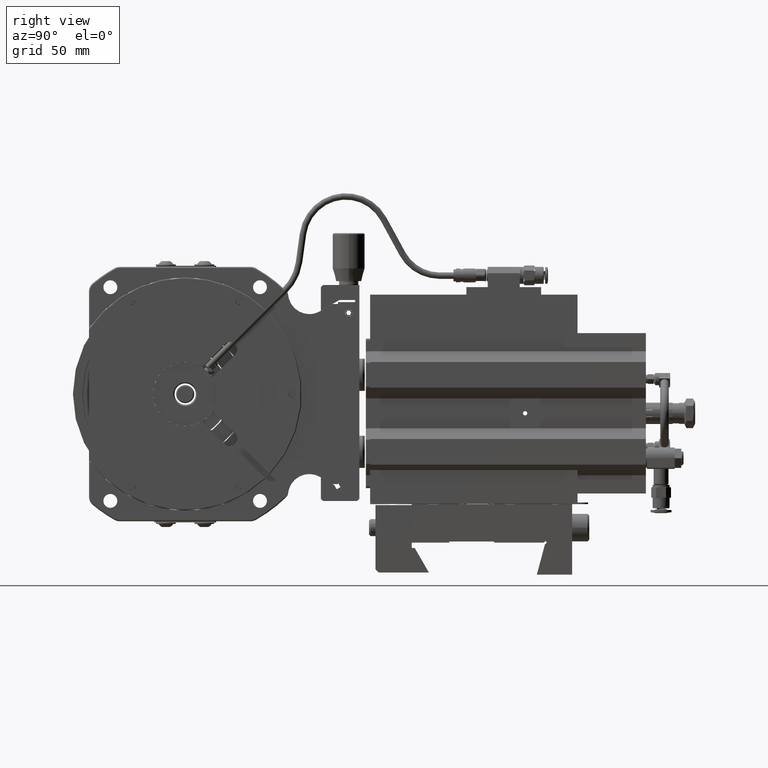
[diagram: clean part render]
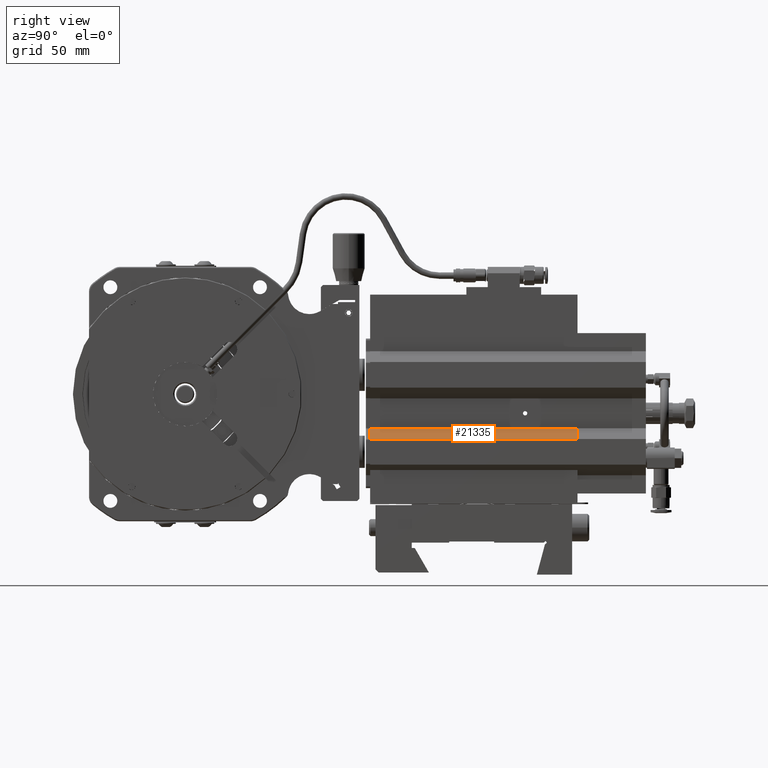
[diagram: same view with one face highlighted and labeled with its STEP entity id]
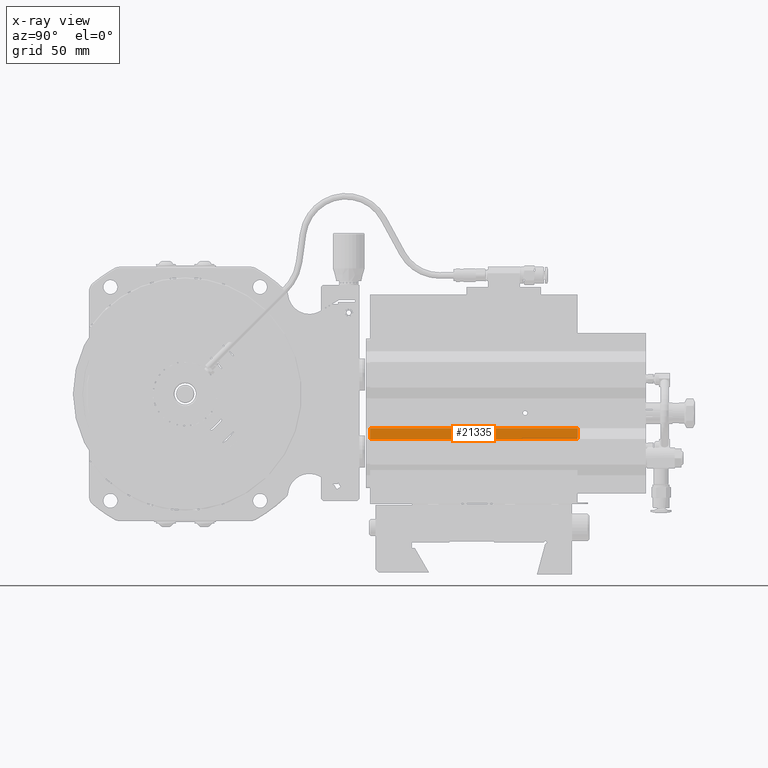
[diagram: x-ray of the same camera — body ghosted, the highlighted face saturated]
A machine part, right view. The second image highlights one B-rep face of the part: STEP entity #21335.
The next image is the same camera in x-ray: the body ghosted, the highlighted face saturated — about 0% of this face is hidden behind the body in this view.
In plain terms, the highlighted planar face has unit normal (0.7071, -0, 0.7071).
Its self-contained STEP definition (entity closure, byte-faithful):
#444 = DIRECTION ( 'NONE',  ( 0.7071067811865479058, 5.174600492913465983E-19, -0.7071067811865472397 ) ) ;
#485 = CARTESIAN_POINT ( 'NONE',  ( 0.4330708661417326244, 3.308669289292881288, -0.8248286879110496850 ) ) ;
#628 = LINE ( 'NONE', #18018, #1060 ) ;
#1060 = VECTOR ( 'NONE', #35464, 39.37007874015748143 ) ;
#1777 = ORIENTED_EDGE ( 'NONE', *, *, #48057, .F. ) ;
#2961 = ORIENTED_EDGE ( 'NONE', *, *, #50504, .T. ) ;
#4465 = VERTEX_POINT ( 'NONE', #485 ) ;
#11303 = DIRECTION ( 'NONE',  ( 0.7071067811865479058, 5.174600492913465983E-19, -0.7071067811865472397 ) ) ;
#14956 = AXIS2_PLACEMENT_3D ( 'NONE', #17938, #52181, #29709 ) ;
#17938 = CARTESIAN_POINT ( 'NONE',  ( 0.4330708661417326244, 3.308669289292881288, -0.8248286879110496850 ) ) ;
#17953 = VECTOR ( 'NONE', #11303, 39.37007874015748143 ) ;
#18018 = CARTESIAN_POINT ( 'NONE',  ( 0.2362204724409449896, 3.308669289292881288, -0.6279782942102621890 ) ) ;
#19203 = DIRECTION ( 'NONE',  ( -2.738967610578714190E-17, 1.000000000000000000, -2.775557561562891351E-17 ) ) ;
#19707 = EDGE_CURVE ( 'NONE', #46901, #24677, #628, .T. ) ;
#19922 = ORIENTED_EDGE ( 'NONE', *, *, #31297, .T. ) ;
#21335 = ADVANCED_FACE ( 'NONE', ( #25100 ), #46159, .T. ) ;
#24677 = VERTEX_POINT ( 'NONE', #32967 ) ;
#25100 = FACE_OUTER_BOUND ( 'NONE', #51271, .T. ) ;
#27529 = CARTESIAN_POINT ( 'NONE',  ( 0.4330708661417326244, 3.308669289292881288, -0.8248286879110496850 ) ) ;
#29709 = DIRECTION ( 'NONE',  ( 0.7071067811865479058, 5.174600492913465983E-19, -0.7071067811865472397 ) ) ;
#31297 = EDGE_CURVE ( 'NONE', #46901, #4465, #40084, .T. ) ;
#31546 = VERTEX_POINT ( 'NONE', #55994 ) ;
#32113 = CARTESIAN_POINT ( 'NONE',  ( 0.2362204724409454060, 3.308669289292881288, -0.6279782942102621890 ) ) ;
#32967 = CARTESIAN_POINT ( 'NONE',  ( 0.2362204724409449064, 7.127566927088157200, -0.6279782942102623000 ) ) ;
#33753 = VECTOR ( 'NONE', #19203, 39.37007874015748143 ) ;
#34423 = ORIENTED_EDGE ( 'NONE', *, *, #19707, .F. ) ;
#35464 = DIRECTION ( 'NONE',  ( -2.738967610578714190E-17, 1.000000000000000000, -2.775557561562891351E-17 ) ) ;
#37236 = LINE ( 'NONE', #54607, #17953 ) ;
#37480 = CARTESIAN_POINT ( 'NONE',  ( 0.4330708661417326244, 3.308669289292881288, -0.8248286879110496850 ) ) ;
#40084 = LINE ( 'NONE', #27529, #50305 ) ;
#45398 = LINE ( 'NONE', #37480, #33753 ) ;
#46159 = PLANE ( 'NONE',  #14956 ) ;
#46901 = VERTEX_POINT ( 'NONE', #32113 ) ;
#48057 = EDGE_CURVE ( 'NONE', #24677, #31546, #37236, .T. ) ;
#50305 = VECTOR ( 'NONE', #444, 39.37007874015748143 ) ;
#50504 = EDGE_CURVE ( 'NONE', #4465, #31546, #45398, .T. ) ;
#51271 = EDGE_LOOP ( 'NONE', ( #1777, #34423, #19922, #2961 ) ) ;
#52181 = DIRECTION ( 'NONE',  ( 0.7071067811865472397, -7.798716288489736860E-17, 0.7071067811865479058 ) ) ;
#54607 = CARTESIAN_POINT ( 'NONE',  ( 0.4330708661417325689, 7.127566927088157200, -0.8248286879110497960 ) ) ;
#55994 = CARTESIAN_POINT ( 'NONE',  ( 0.4330708661417325689, 7.127566927088157200, -0.8248286879110497960 ) ) ;